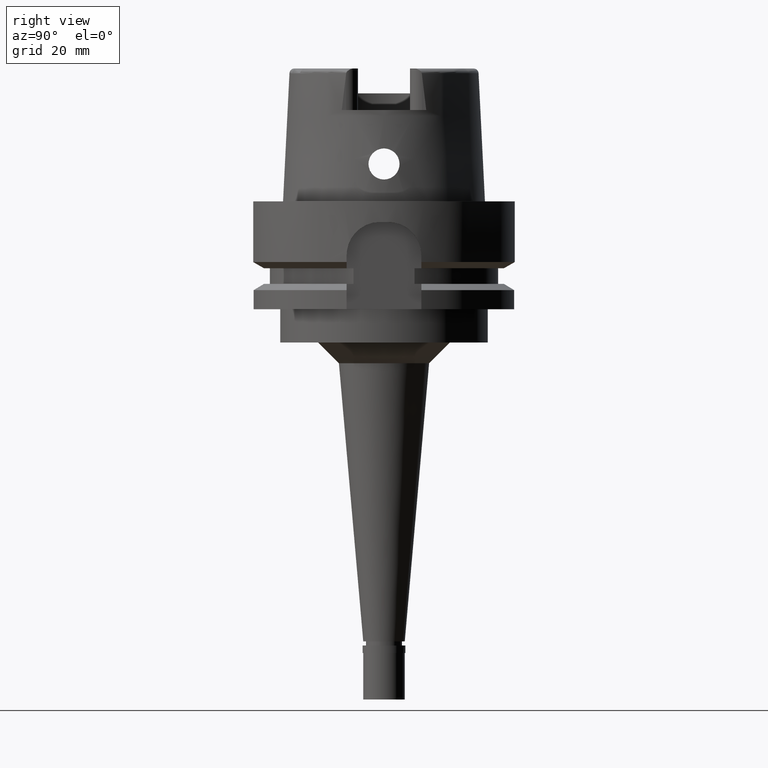
[diagram: clean part render]
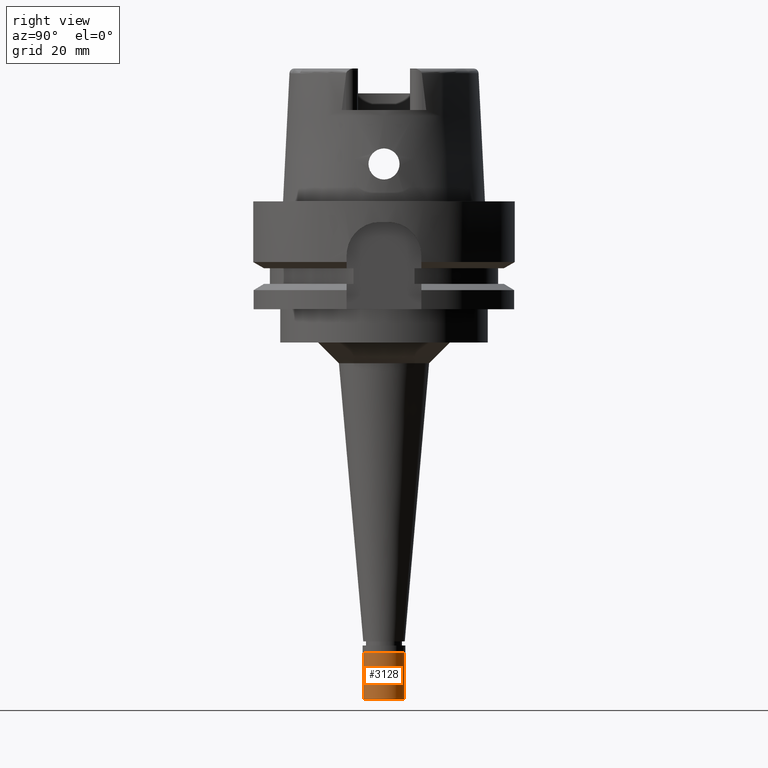
[diagram: same view with one face highlighted and labeled with its STEP entity id]
A machine part, right view. The second image highlights one B-rep face of the part: STEP entity #3128.
In plain terms, the highlighted cylindrical surface (edge-blend (fillet) strip) has radius 5 mm, axis along (0, 0, 1).
Its self-contained STEP definition (entity closure, byte-faithful):
#374 = DIRECTION ( 'NONE',  ( 0.0000000000000000000, 0.0000000000000000000, 1.000000000000000000 ) ) ;
#383 = AXIS2_PLACEMENT_3D ( 'NONE', #3215, #374, #1106 ) ;
#433 = AXIS2_PLACEMENT_3D ( 'NONE', #680, #4028, #646 ) ;
#491 = VECTOR ( 'NONE', #5374, 1000.000000000000000 ) ;
#646 = DIRECTION ( 'NONE',  ( 0.0000000000000000000, 1.000000000000000000, 0.0000000000000000000 ) ) ;
#680 = CARTESIAN_POINT ( 'NONE',  ( 0.0000000000000000000, 0.0000000000000000000, -1.800000000000000044 ) ) ;
#711 = EDGE_CURVE ( 'NONE', #2506, #3742, #4185, .T. ) ;
#768 = CARTESIAN_POINT ( 'NONE',  ( 0.0000000000000000000, -5.000000000000000000, -13.00000000000000000 ) ) ;
#813 = EDGE_LOOP ( 'NONE', ( #1117, #2137, #1955, #1410 ) ) ;
#1106 = DIRECTION ( 'NONE',  ( 0.0000000000000000000, -1.000000000000000000, 0.0000000000000000000 ) ) ;
#1117 = ORIENTED_EDGE ( 'NONE', *, *, #2762, .T. ) ;
#1410 = ORIENTED_EDGE ( 'NONE', *, *, #711, .F. ) ;
#1450 = AXIS2_PLACEMENT_3D ( 'NONE', #3080, #1840, #4757 ) ;
#1615 = VECTOR ( 'NONE', #2470, 1000.000000000000000 ) ;
#1840 = DIRECTION ( 'NONE',  ( 0.0000000000000000000, 0.0000000000000000000, 1.000000000000000000 ) ) ;
#1955 = ORIENTED_EDGE ( 'NONE', *, *, #3201, .T. ) ;
#2137 = ORIENTED_EDGE ( 'NONE', *, *, #4938, .T. ) ;
#2232 = CIRCLE ( 'NONE', #383, 5.000000000000000000 ) ;
#2470 = DIRECTION ( 'NONE',  ( 0.0000000000000000000, 0.0000000000000000000, -1.000000000000000000 ) ) ;
#2494 = CARTESIAN_POINT ( 'NONE',  ( 0.0000000000000000000, 5.000000000000000000, -1.800000000000000044 ) ) ;
#2506 = VERTEX_POINT ( 'NONE', #5327 ) ;
#2762 = EDGE_CURVE ( 'NONE', #2506, #4005, #5492, .T. ) ;
#3080 = CARTESIAN_POINT ( 'NONE',  ( 0.0000000000000000000, 0.0000000000000000000, -13.65000000000000036 ) ) ;
#3128 = ADVANCED_FACE ( 'NONE', ( #3968 ), #3905, .T. ) ;
#3201 = EDGE_CURVE ( 'NONE', #3531, #3742, #2232, .T. ) ;
#3215 = CARTESIAN_POINT ( 'NONE',  ( 0.0000000000000000000, 0.0000000000000000000, -13.00000000000000000 ) ) ;
#3531 = VERTEX_POINT ( 'NONE', #768 ) ;
#3650 = LINE ( 'NONE', #4912, #491 ) ;
#3742 = VERTEX_POINT ( 'NONE', #4270 ) ;
#3905 = CYLINDRICAL_SURFACE ( 'NONE', #1450, 5.000000000000000000 ) ;
#3968 = FACE_OUTER_BOUND ( 'NONE', #813, .T. ) ;
#4005 = VERTEX_POINT ( 'NONE', #4348 ) ;
#4028 = DIRECTION ( 'NONE',  ( 0.0000000000000000000, 0.0000000000000000000, -1.000000000000000000 ) ) ;
#4185 = LINE ( 'NONE', #2494, #1615 ) ;
#4270 = CARTESIAN_POINT ( 'NONE',  ( 0.0000000000000000000, 5.000000000000000000, -13.00000000000000000 ) ) ;
#4348 = CARTESIAN_POINT ( 'NONE',  ( 0.0000000000000000000, -5.000000000000000000, -1.800000000000000044 ) ) ;
#4757 = DIRECTION ( 'NONE',  ( 0.0000000000000000000, 1.000000000000000000, 0.0000000000000000000 ) ) ;
#4912 = CARTESIAN_POINT ( 'NONE',  ( 0.0000000000000000000, -5.000000000000000000, -1.800000000000000044 ) ) ;
#4938 = EDGE_CURVE ( 'NONE', #4005, #3531, #3650, .T. ) ;
#5327 = CARTESIAN_POINT ( 'NONE',  ( 0.0000000000000000000, 5.000000000000000000, -1.800000000000000044 ) ) ;
#5374 = DIRECTION ( 'NONE',  ( 0.0000000000000000000, 0.0000000000000000000, -1.000000000000000000 ) ) ;
#5492 = CIRCLE ( 'NONE', #433, 5.000000000000000000 ) ;